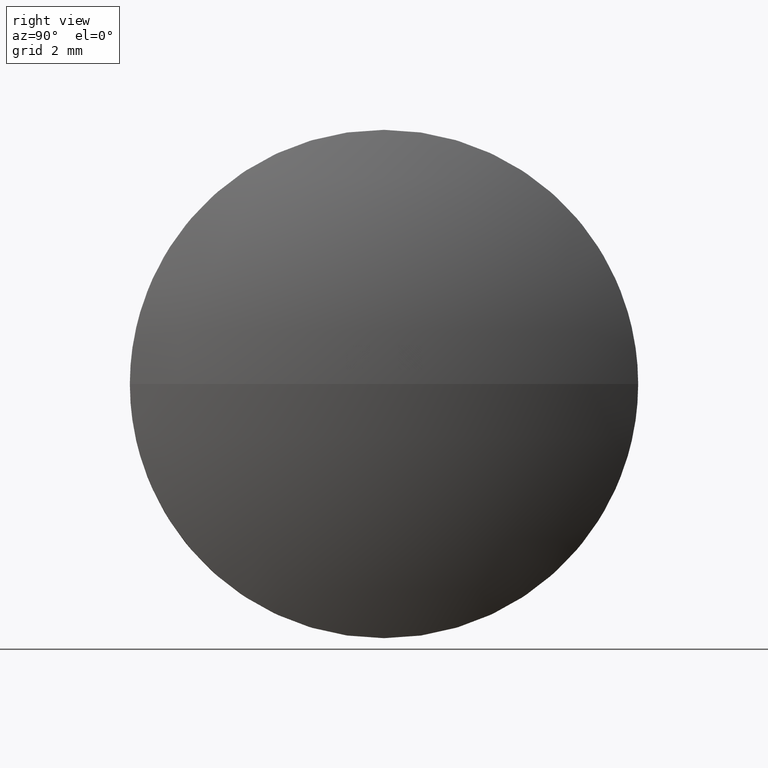
[diagram: clean part render]
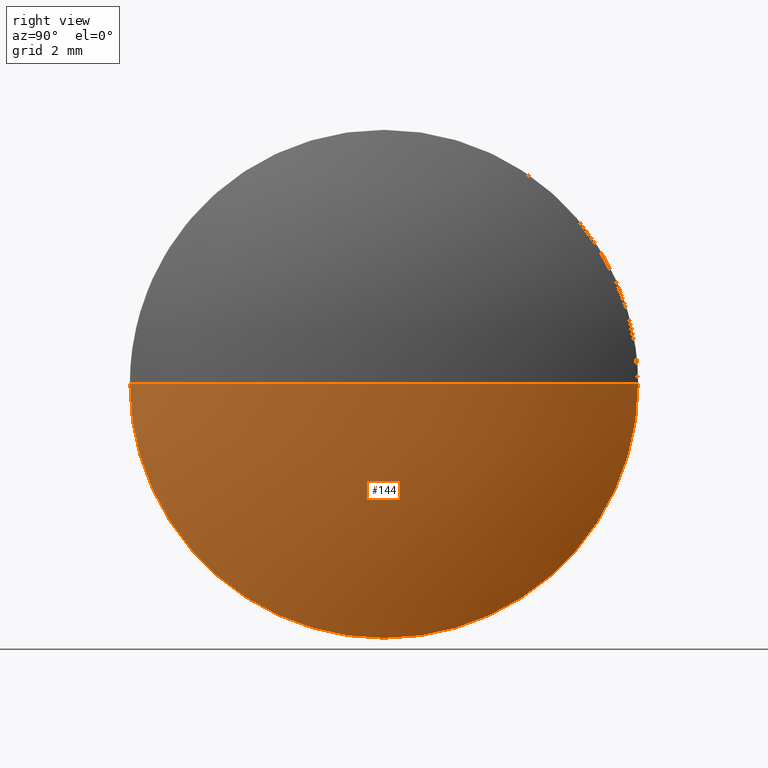
[diagram: same view with one face highlighted and labeled with its STEP entity id]
A machine part, right view. The second image highlights one B-rep face of the part: STEP entity #144.
In plain terms, the highlighted spherical surface has radius 11.4446 mm.
Its self-contained STEP definition (entity closure, byte-faithful):
#1 = AXIS2_PLACEMENT_3D ( 'NONE', #26, #68, #40 ) ;
#13 = EDGE_LOOP ( 'NONE', ( #176, #135, #122, #21 ) ) ;
#21 = ORIENTED_EDGE ( 'NONE', *, *, #53, .F. ) ;
#23 = CIRCLE ( 'NONE', #185, 11.44456521739140000 ) ;
#26 = CARTESIAN_POINT ( 'NONE',  ( 478.8088668298425400, 77.15318376785940300, 0.0000000000000000000 ) ) ;
#29 = SPHERICAL_SURFACE ( 'NONE', #95, 11.44456521739140300 ) ;
#38 = CARTESIAN_POINT ( 'NONE',  ( 489.1034320472339200, 77.15318376785940300, 0.0000000000000000000 ) ) ;
#39 = CARTESIAN_POINT ( 'NONE',  ( 478.8088668298425400, 77.15318376785940300, 0.0000000000000000000 ) ) ;
#40 = DIRECTION ( 'NONE',  ( 0.0000000000000000000, 1.000000000000000000, 1.224646799147353700E-016 ) ) ;
#47 = CARTESIAN_POINT ( 'NONE',  ( 489.1034320472339200, 77.15318376785940300, 0.0000000000000000000 ) ) ;
#53 = EDGE_CURVE ( 'NONE', #67, #154, #168, .T. ) ;
#63 = EDGE_CURVE ( 'NONE', #74, #67, #23, .T. ) ;
#67 = VERTEX_POINT ( 'NONE', #124 ) ;
#68 = DIRECTION ( 'NONE',  ( 0.0000000000000000000, 1.224646799147353200E-016, -1.000000000000000000 ) ) ;
#70 = CARTESIAN_POINT ( 'NONE',  ( 489.1034320472339200, 77.15318376785940300, -5.000000000000004400 ) ) ;
#74 = VERTEX_POINT ( 'NONE', #112 ) ;
#81 = DIRECTION ( 'NONE',  ( 0.0000000000000000000, 0.0000000000000000000, 1.000000000000000000 ) ) ;
#92 = DIRECTION ( 'NONE',  ( -0.0000000000000000000, 0.0000000000000000000, 1.000000000000000000 ) ) ;
#94 = EDGE_CURVE ( 'NONE', #154, #156, #134, .T. ) ;
#95 = AXIS2_PLACEMENT_3D ( 'NONE', #39, #149, #131 ) ;
#112 = CARTESIAN_POINT ( 'NONE',  ( 490.2534320472339000, 77.15318376785940300, 0.0000000000000000000 ) ) ;
#122 = ORIENTED_EDGE ( 'NONE', *, *, #94, .F. ) ;
#124 = CARTESIAN_POINT ( 'NONE',  ( 489.1034320472339200, 82.15318376785940300, 0.0000000000000000000 ) ) ;
#128 = DIRECTION ( 'NONE',  ( -1.000000000000000000, -0.0000000000000000000, -0.0000000000000000000 ) ) ;
#131 = DIRECTION ( 'NONE',  ( 0.0000000000000000000, 1.000000000000000000, 0.0000000000000000000 ) ) ;
#132 = CIRCLE ( 'NONE', #1, 11.44456521739140000 ) ;
#134 = CIRCLE ( 'NONE', #147, 5.000000000000004400 ) ;
#135 = ORIENTED_EDGE ( 'NONE', *, *, #171, .T. ) ;
#136 = DIRECTION ( 'NONE',  ( 1.000000000000000000, 0.0000000000000000000, 0.0000000000000000000 ) ) ;
#139 = DIRECTION ( 'NONE',  ( -1.000000000000000000, -0.0000000000000000000, -0.0000000000000000000 ) ) ;
#143 = FACE_OUTER_BOUND ( 'NONE', #13, .T. ) ;
#144 = ADVANCED_FACE ( 'NONE', ( #143 ), #29, .T. ) ;
#147 = AXIS2_PLACEMENT_3D ( 'NONE', #38, #128, #182 ) ;
#149 = DIRECTION ( 'NONE',  ( -0.0000000000000000000, 0.0000000000000000000, -1.000000000000000000 ) ) ;
#154 = VERTEX_POINT ( 'NONE', #70 ) ;
#156 = VERTEX_POINT ( 'NONE', #180 ) ;
#168 = CIRCLE ( 'NONE', #169, 5.000000000000004400 ) ;
#169 = AXIS2_PLACEMENT_3D ( 'NONE', #47, #139, #81 ) ;
#171 = EDGE_CURVE ( 'NONE', #74, #156, #132, .T. ) ;
#174 = CARTESIAN_POINT ( 'NONE',  ( 478.8088668298425400, 77.15318376785940300, 0.0000000000000000000 ) ) ;
#176 = ORIENTED_EDGE ( 'NONE', *, *, #63, .F. ) ;
#180 = CARTESIAN_POINT ( 'NONE',  ( 489.1034320472339200, 72.15318376785940300, -6.123233995736768300E-016 ) ) ;
#182 = DIRECTION ( 'NONE',  ( 0.0000000000000000000, 0.0000000000000000000, 1.000000000000000000 ) ) ;
#185 = AXIS2_PLACEMENT_3D ( 'NONE', #174, #92, #136 ) ;